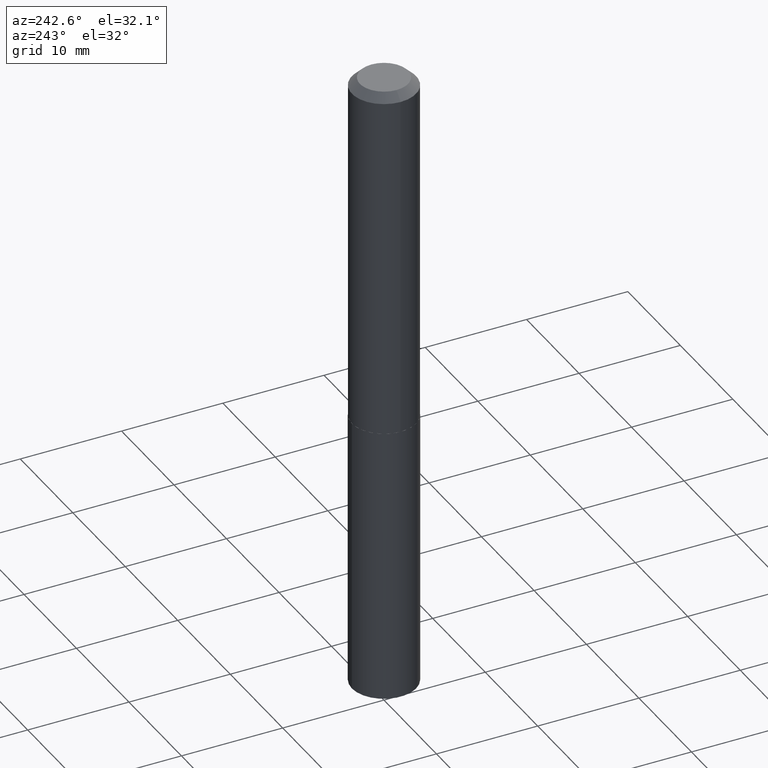
[diagram: clean part render]
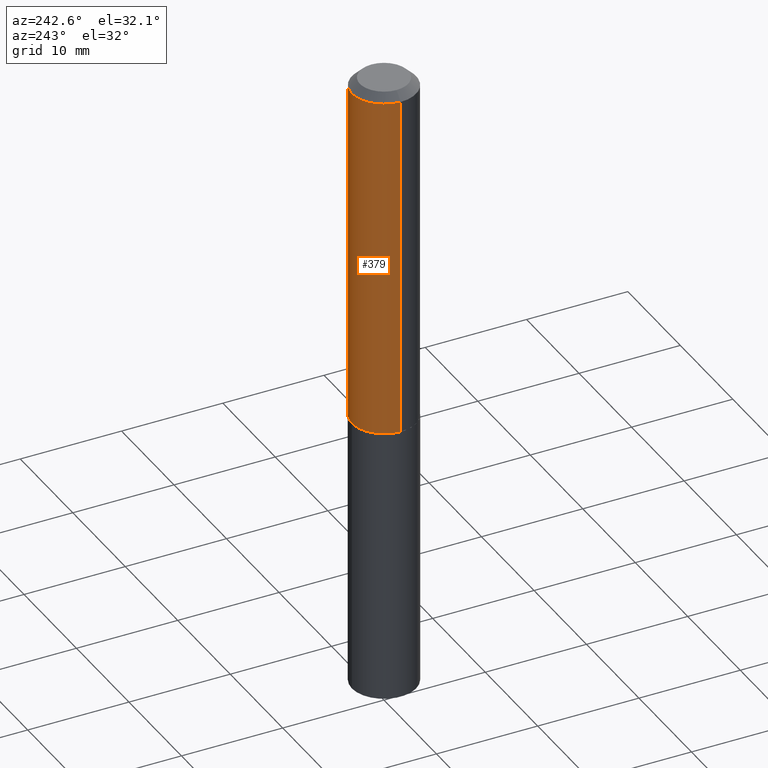
[diagram: same view with one face highlighted and labeled with its STEP entity id]
A machine part, auxiliary view. The second image highlights one B-rep face of the part: STEP entity #379.
In plain terms, the highlighted cylindrical surface (edge-blend (fillet) strip) has radius 3.175 mm, axis along (-0, 0, 1).
Its self-contained STEP definition (entity closure, byte-faithful):
#2 = CYLINDRICAL_SURFACE ( 'NONE', #51, 0.1250000000000000833 ) ;
#25 = CIRCLE ( 'NONE', #323, 0.1250000000000000000 ) ;
#50 = CARTESIAN_POINT ( 'NONE',  ( 0.1250000000000000833, -8.728703347107839305E-16, 6.095220969744923945E-30 ) ) ;
#51 = AXIS2_PLACEMENT_3D ( 'NONE', #93, #245, #364 ) ;
#86 = VERTEX_POINT ( 'NONE', #185 ) ;
#93 = CARTESIAN_POINT ( 'NONE',  ( 0.000000000000000000, 0.000000000000000000, 0.000000000000000000 ) ) ;
#102 = DIRECTION ( 'NONE',  ( -2.445468806185136877E-29, 3.491481338843145188E-15, 1.000000000000000000 ) ) ;
#113 = EDGE_CURVE ( 'NONE', #86, #306, #372, .T. ) ;
#135 = EDGE_CURVE ( 'NONE', #370, #333, #231, .T. ) ;
#155 = FACE_OUTER_BOUND ( 'NONE', #322, .T. ) ;
#159 = VECTOR ( 'NONE', #102, 39.37007874015748143 ) ;
#168 = DIRECTION ( 'NONE',  ( -2.445468806185136877E-29, 3.491481338843145188E-15, 1.000000000000000000 ) ) ;
#180 = EDGE_CURVE ( 'NONE', #306, #333, #25, .T. ) ;
#185 = CARTESIAN_POINT ( 'NONE',  ( 0.1250000000000001665, -5.671911434950688343E-15, -1.374500000000000055 ) ) ;
#189 = CARTESIAN_POINT ( 'NONE',  ( -0.1250000000000000000, -1.565896526339250439E-15, -0.03125000000000021511 ) ) ;
#191 = CARTESIAN_POINT ( 'NONE',  ( 3.361296874101470580E-29, -4.799041100239904215E-15, -1.374500000000000055 ) ) ;
#197 = VECTOR ( 'NONE', #168, 39.37007874015748143 ) ;
#204 = DIRECTION ( 'NONE',  ( 1.000000000000000000, -6.982962677686266711E-15, 0.000000000000000000 ) ) ;
#231 = LINE ( 'NONE', #311, #159 ) ;
#237 = ORIENTED_EDGE ( 'NONE', *, *, #180, .F. ) ;
#245 = DIRECTION ( 'NONE',  ( -2.445468806185136597E-29, 3.491481338843145583E-15, 1.000000000000000000 ) ) ;
#255 = DIRECTION ( 'NONE',  ( -2.445468806185136597E-29, 3.491481338843145583E-15, 1.000000000000000000 ) ) ;
#269 = ORIENTED_EDGE ( 'NONE', *, *, #113, .F. ) ;
#273 = AXIS2_PLACEMENT_3D ( 'NONE', #191, #255, #339 ) ;
#278 = CARTESIAN_POINT ( 'NONE',  ( -0.1250000000000001665, -3.910862680539777405E-15, -1.374500000000000055 ) ) ;
#296 = EDGE_CURVE ( 'NONE', #86, #370, #335, .T. ) ;
#299 = ORIENTED_EDGE ( 'NONE', *, *, #296, .T. ) ;
#306 = VERTEX_POINT ( 'NONE', #307 ) ;
#307 = CARTESIAN_POINT ( 'NONE',  ( 0.1250000000000000000, -9.819791265496324395E-16, -0.03125000000000021511 ) ) ;
#311 = CARTESIAN_POINT ( 'NONE',  ( -0.1250000000000000833, 8.881784197001258240E-16, -6.148668862818636431E-30 ) ) ;
#322 = EDGE_LOOP ( 'NONE', ( #299, #326, #237, #269 ) ) ;
#323 = AXIS2_PLACEMENT_3D ( 'NONE', #347, #375, #204 ) ;
#326 = ORIENTED_EDGE ( 'NONE', *, *, #135, .T. ) ;
#333 = VERTEX_POINT ( 'NONE', #189 ) ;
#335 = CIRCLE ( 'NONE', #273, 0.1250000000000001665 ) ;
#339 = DIRECTION ( 'NONE',  ( 1.000000000000000000, -6.982962677686269077E-15, 0.000000000000000000 ) ) ;
#347 = CARTESIAN_POINT ( 'NONE',  ( 7.642090019328604414E-31, -1.091087918388490513E-16, -0.03125000000000021511 ) ) ;
#364 = DIRECTION ( 'NONE',  ( 1.000000000000000000, -6.982962677686266711E-15, 4.876176775795935793E-29 ) ) ;
#370 = VERTEX_POINT ( 'NONE', #278 ) ;
#372 = LINE ( 'NONE', #50, #197 ) ;
#375 = DIRECTION ( 'NONE',  ( -2.445468806185136597E-29, 3.491481338843145583E-15, 1.000000000000000000 ) ) ;
#379 = ADVANCED_FACE ( 'NONE', ( #155 ), #2, .T. ) ;